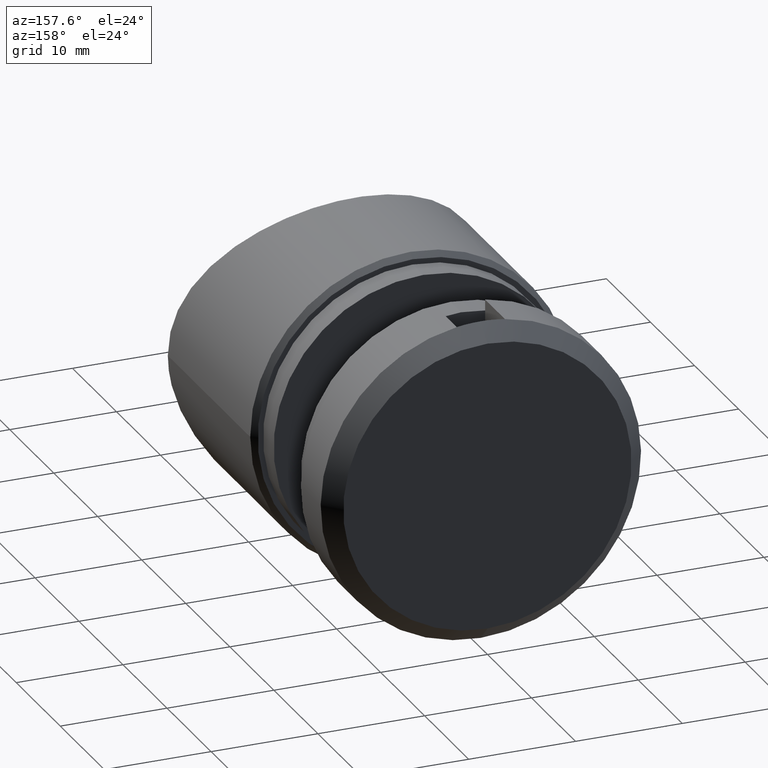
[diagram: clean part render]
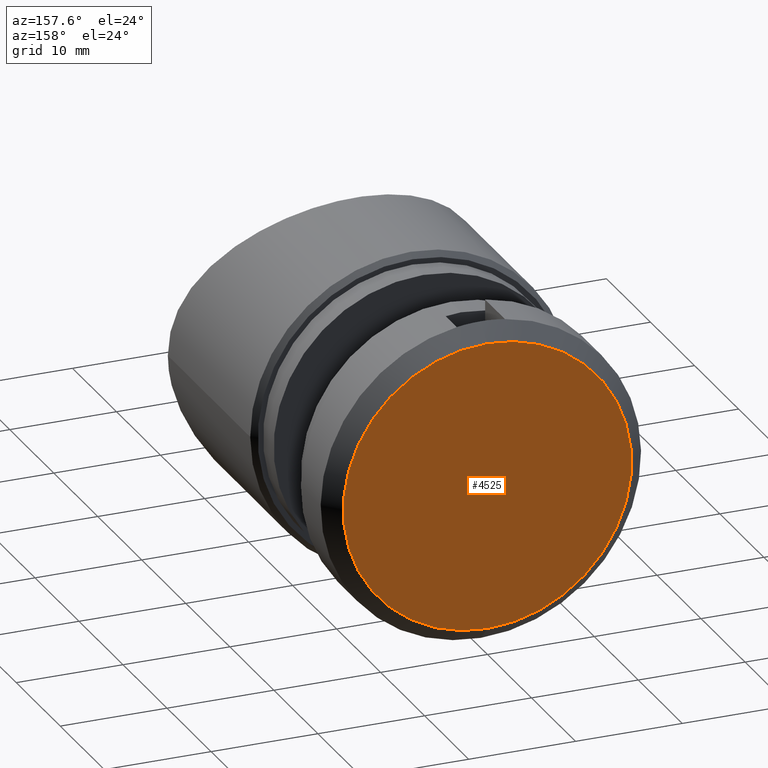
[diagram: same view with one face highlighted and labeled with its STEP entity id]
A machine part, auxiliary view. The second image highlights one B-rep face of the part: STEP entity #4525.
In plain terms, the highlighted planar face has unit normal (0, 1, 0).
Its self-contained STEP definition (entity closure, byte-faithful):
#192 = DIRECTION ( 'NONE',  ( -0.000000000000000000, -1.000000000000000000, -0.000000000000000000 ) ) ;
#593 = PLANE ( 'NONE',  #1554 ) ;
#1554 = AXIS2_PLACEMENT_3D ( 'NONE', #7180, #9184, #7134 ) ;
#1785 = ORIENTED_EDGE ( 'NONE', *, *, #10345, .F. ) ;
#2229 = FACE_OUTER_BOUND ( 'NONE', #11181, .T. ) ;
#2993 = CIRCLE ( 'NONE', #7919, 13.50000000000000000 ) ;
#3525 = DIRECTION ( 'NONE',  ( 0.000000000000000000, 0.000000000000000000, -1.000000000000000000 ) ) ;
#3780 = CIRCLE ( 'NONE', #8305, 13.50000000000000000 ) ;
#4525 = ADVANCED_FACE ( 'NONE', ( #2229 ), #593, .T. ) ;
#6301 = VERTEX_POINT ( 'NONE', #7135 ) ;
#7134 = DIRECTION ( 'NONE',  ( 0.000000000000000000, -0.000000000000000000, 1.000000000000000000 ) ) ;
#7135 = CARTESIAN_POINT ( 'NONE',  ( 0.000000000000000000, 11.00000000000000000, -13.50000000000000000 ) ) ;
#7180 = CARTESIAN_POINT ( 'NONE',  ( 0.000000000000000000, 11.00000000000000000, 0.000000000000000000 ) ) ;
#7919 = AXIS2_PLACEMENT_3D ( 'NONE', #10938, #192, #3525 ) ;
#8305 = AXIS2_PLACEMENT_3D ( 'NONE', #11538, #10528, #12605 ) ;
#9184 = DIRECTION ( 'NONE',  ( 0.000000000000000000, 1.000000000000000000, 0.000000000000000000 ) ) ;
#9327 = ORIENTED_EDGE ( 'NONE', *, *, #11303, .F. ) ;
#10168 = VERTEX_POINT ( 'NONE', #11224 ) ;
#10345 = EDGE_CURVE ( 'NONE', #6301, #10168, #2993, .T. ) ;
#10528 = DIRECTION ( 'NONE',  ( -0.000000000000000000, -1.000000000000000000, -0.000000000000000000 ) ) ;
#10938 = CARTESIAN_POINT ( 'NONE',  ( 0.000000000000000000, 11.00000000000000000, 0.000000000000000000 ) ) ;
#11181 = EDGE_LOOP ( 'NONE', ( #1785, #9327 ) ) ;
#11224 = CARTESIAN_POINT ( 'NONE',  ( 1.745121688784978228E-15, 11.00000000000000000, 13.50000000000000000 ) ) ;
#11303 = EDGE_CURVE ( 'NONE', #10168, #6301, #3780, .T. ) ;
#11538 = CARTESIAN_POINT ( 'NONE',  ( 0.000000000000000000, 11.00000000000000000, 0.000000000000000000 ) ) ;
#12605 = DIRECTION ( 'NONE',  ( 0.000000000000000000, 0.000000000000000000, -1.000000000000000000 ) ) ;